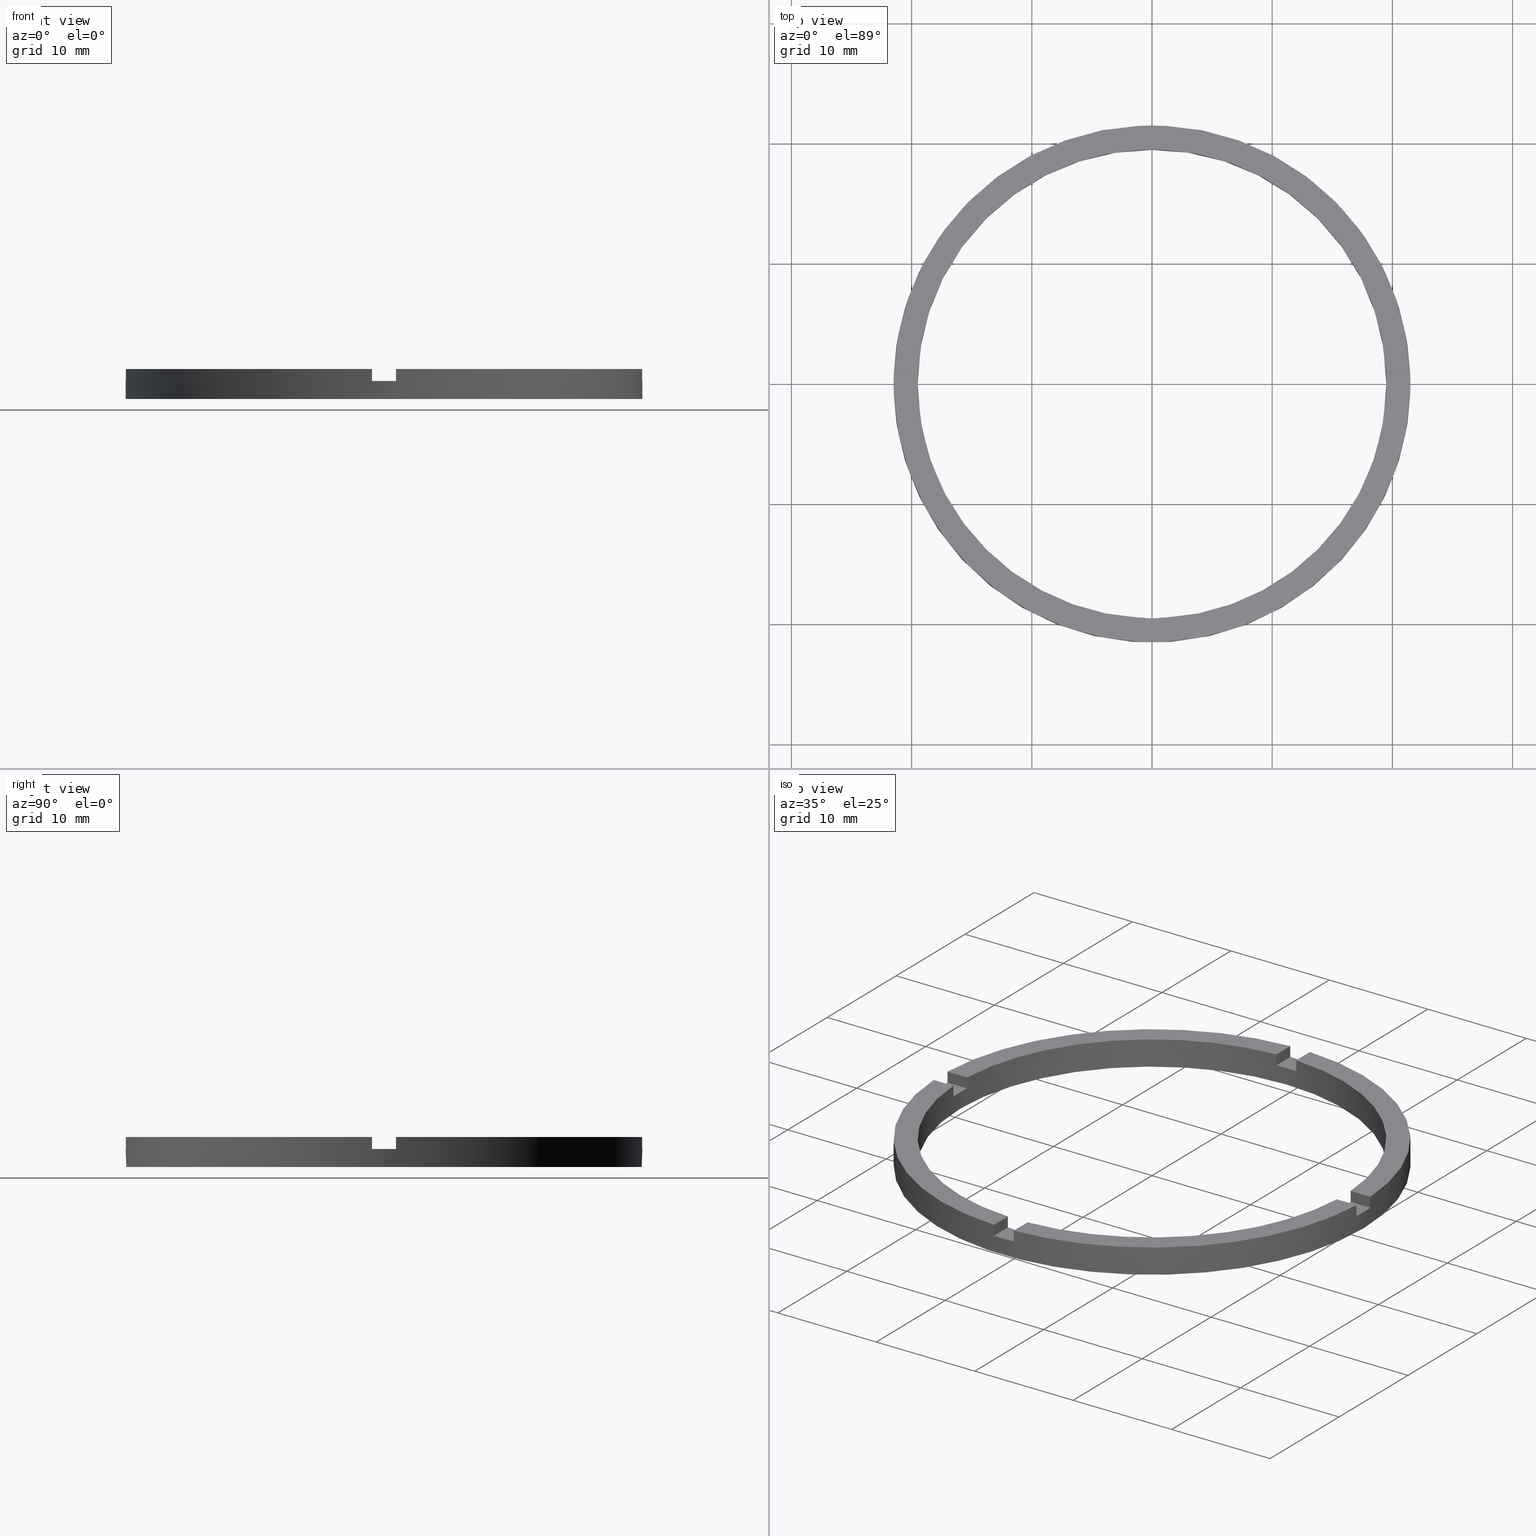
[diagram: canonical four-view strip — front | top / right | iso, engineering-drawing reading convention]
A machine part, canonical four-view strip (front | top / right | iso — engineering-drawing reading convention). The complete STEP part file that produces these views, byte-faithful:
ISO-10303-21;
HEADER;
FILE_DESCRIPTION (( 'STEP AP203' ),
    '1' );
FILE_NAME ('514090.step',
    '2024-12-26T02:36:35',
    ( 'MSI' ),
    ( '' ),
    'SwSTEP 2.0',
    'SolidWorks 2020',
    '' );
FILE_SCHEMA (( 'CONFIG_CONTROL_DESIGN' ));
ENDSEC;

DATA;
#1 =( NAMED_UNIT ( * ) PLANE_ANGLE_UNIT ( ) SI_UNIT ( $, .RADIAN. ) );
#2 = EDGE_CURVE ( 'NONE', #97, #382, #440, .T. ) ;
#3 = CARTESIAN_POINT ( 'NONE',  ( 0.000000000000000000, 0.000000000000000000, 2.500000000000000000 ) ) ;
#4 = CARTESIAN_POINT ( 'NONE',  ( -1.000000000000161426, -21.47673159491451855, 2.500000000000000000 ) ) ;
#5 = CARTESIAN_POINT ( 'NONE',  ( -19.50000000000000000, 0.000000000000000000, 1.500000000000000000 ) ) ;
#6 = APPROVAL_ROLE ( '' ) ;
#7 = LINE ( 'NONE', #99, #261 ) ;
#8 = FACE_OUTER_BOUND ( 'NONE', #625, .T. ) ;
#9 =( LENGTH_UNIT ( ) NAMED_UNIT ( * ) SI_UNIT ( .MILLI., .METRE. ) );
#10 = VECTOR ( 'NONE', #240, 1000.000000000000000 ) ;
#11 = PLANE ( 'NONE',  #716 ) ;
#12 = DIRECTION ( 'NONE',  ( 1.301042606982605321E-16, -1.000000000000000000, 0.000000000000000000 ) ) ;
#13 = DIRECTION ( 'NONE',  ( -0.000000000000000000, -0.000000000000000000, -1.000000000000000000 ) ) ;
#14 = EDGE_CURVE ( 'NONE', #647, #742, #169, .T. ) ;
#15 = CARTESIAN_POINT ( 'NONE',  ( 0.000000000000000000, 0.000000000000000000, 1.500000000000000000 ) ) ;
#16 = DIRECTION ( 'NONE',  ( -0.000000000000000000, 0.000000000000000000, 1.000000000000000000 ) ) ;
#17 = LINE ( 'NONE', #282, #554 ) ;
#18 = PLANE ( 'NONE',  #77 ) ;
#19 = PLANE ( 'NONE',  #193 ) ;
#20 = EDGE_CURVE ( 'NONE', #173, #123, #145, .T. ) ;
#21 = ADVANCED_FACE ( 'NONE', ( #677 ), #19, .F. ) ;
#22 = DIRECTION ( 'NONE',  ( 0.000000000000000000, 0.000000000000000000, 1.000000000000000000 ) ) ;
#23 = CARTESIAN_POINT ( 'NONE',  ( -19.50000000000000000, 0.000000000000000000, 2.500000000000000000 ) ) ;
#24 = AXIS2_PLACEMENT_3D ( 'NONE', #218, #525, #767 ) ;
#25 = DIRECTION ( 'NONE',  ( -0.000000000000000000, -0.000000000000000000, -1.000000000000000000 ) ) ;
#26 = DIRECTION ( 'NONE',  ( 1.000000000000000000, 0.000000000000000000, 0.000000000000000000 ) ) ;
#27 = DIRECTION ( 'NONE',  ( 0.000000000000000000, 0.000000000000000000, 1.000000000000000000 ) ) ;
#28 = CIRCLE ( 'NONE', #783, 21.50000000000000000 ) ;
#29 = DIRECTION ( 'NONE',  ( 1.000000000000000000, 4.336808689942018352E-17, 0.000000000000000000 ) ) ;
#30 = CARTESIAN_POINT ( 'NONE',  ( -19.47434209415044748, 0.9999999999999753530, 2.500000000000000000 ) ) ;
#31 = DIRECTION ( 'NONE',  ( 0.000000000000000000, 0.000000000000000000, 1.000000000000000000 ) ) ;
#32 = APPROVAL_DATE_TIME ( #568, #52 ) ;
#33 = DIRECTION ( 'NONE',  ( 1.000000000000000000, 4.336808689942018352E-17, 0.000000000000000000 ) ) ;
#34 = DIRECTION ( 'NONE',  ( -1.000000000000000000, -4.336808689942018352E-17, -0.000000000000000000 ) ) ;
#35 = DIRECTION ( 'NONE',  ( 1.000000000000000000, 0.000000000000000000, 0.000000000000000000 ) ) ;
#36 = DIRECTION ( 'NONE',  ( 0.000000000000000000, -0.000000000000000000, 1.000000000000000000 ) ) ;
#37 = APPROVAL_PERSON_ORGANIZATION ( #44, #52, #283 ) ;
#38 = CARTESIAN_POINT ( 'NONE',  ( 11.49999999999999289, 0.9999999999998414602, 1.500000000000000000 ) ) ;
#39 = PERSON_AND_ORGANIZATION ( #360, #311 ) ;
#40 = AXIS2_PLACEMENT_3D ( 'NONE', #502, #16, #122 ) ;
#41 = PERSON_AND_ORGANIZATION_ROLE ( 'design_owner' ) ;
#42 = DIRECTION ( 'NONE',  ( 0.000000000000000000, 0.000000000000000000, 1.000000000000000000 ) ) ;
#43 = AXIS2_PLACEMENT_3D ( 'NONE', #737, #266, #215 ) ;
#44 = PERSON_AND_ORGANIZATION ( #360, #311 ) ;
#45 = DIRECTION ( 'NONE',  ( -1.301042606982605321E-16, 1.000000000000000000, -0.000000000000000000 ) ) ;
#46 = LOCAL_TIME ( 10, 36, 35.00000000000000000, #581 ) ;
#47 = AXIS2_PLACEMENT_3D ( 'NONE', #744, #220, #323 ) ;
#48 = DIRECTION ( 'NONE',  ( 0.000000000000000000, 0.000000000000000000, 1.000000000000000000 ) ) ;
#49 = CARTESIAN_POINT ( 'NONE',  ( -1.000000000000025535, 11.49999999999999822, 1.500000000000000000 ) ) ;
#50 = EDGE_CURVE ( 'NONE', #149, #697, #397, .T. ) ;
#51 = CARTESIAN_POINT ( 'NONE',  ( 0.000000000000000000, 0.000000000000000000, 2.500000000000000000 ) ) ;
#52 = APPROVAL ( #223, 'δָ��' ) ;
#53 = ADVANCED_FACE ( 'NONE', ( #399 ), #602, .F. ) ;
#54 = APPROVAL_PERSON_ORGANIZATION ( #315, #570, #6 ) ;
#55 = CARTESIAN_POINT ( 'NONE',  ( -11.50000000000018296, -1.000000000000023315, 1.500000000000000000 ) ) ;
#56 = DIRECTION ( 'NONE',  ( 1.000000000000000000, 0.000000000000000000, 0.000000000000000000 ) ) ;
#57 = EDGE_CURVE ( 'NONE', #357, #367, #692, .T. ) ;
#58 = CARTESIAN_POINT ( 'NONE',  ( -19.50000000000000000, 0.000000000000000000, 0.000000000000000000 ) ) ;
#59 = LOCAL_TIME ( 10, 36, 35.00000000000000000, #594 ) ;
#60 = CARTESIAN_POINT ( 'NONE',  ( 0.000000000000000000, 0.000000000000000000, 1.500000000000000000 ) ) ;
#61 = CARTESIAN_POINT ( 'NONE',  ( 0.000000000000000000, 0.000000000000000000, 0.000000000000000000 ) ) ;
#62 = PRODUCT_RELATED_PRODUCT_CATEGORY ( 'detail', '', ( #606 ) ) ;
#63 = DIRECTION ( 'NONE',  ( 1.000000000000000000, 0.000000000000000000, 0.000000000000000000 ) ) ;
#64 = CARTESIAN_POINT ( 'NONE',  ( 0.9999999999999744649, 21.47673159491452921, 2.500000000000000000 ) ) ;
#65 = CARTESIAN_POINT ( 'NONE',  ( 0.9999999999998373523, -11.50000000000017764, 2.500000000000000000 ) ) ;
#66 = AXIS2_PLACEMENT_3D ( 'NONE', #527, #354, #298 ) ;
#67 = CARTESIAN_POINT ( 'NONE',  ( 0.9999999999999744649, 19.47434209415044748, 1.500000000000000000 ) ) ;
#68 = CARTESIAN_POINT ( 'NONE',  ( 19.47434209415044037, -1.000000000000158096, 1.500000000000000000 ) ) ;
#69 = EDGE_CURVE ( 'NONE', #382, #695, #430, .T. ) ;
#70 = DIRECTION ( 'NONE',  ( 0.000000000000000000, 0.000000000000000000, 1.000000000000000000 ) ) ;
#71 = DIRECTION ( 'NONE',  ( 1.000000000000000000, 0.000000000000000000, 0.000000000000000000 ) ) ;
#72 = ORIENTED_EDGE ( 'NONE', *, *, #400, .F. ) ;
#73 = CARTESIAN_POINT ( 'NONE',  ( -21.47673159491452566, -1.000000000000024869, 2.500000000000000000 ) ) ;
#74 = EDGE_LOOP ( 'NONE', ( #730, #458, #356, #84, #728, #628, #194, #643, #461, #381, #118, #403 ) ) ;
#75 = EDGE_CURVE ( 'NONE', #83, #695, #162, .T. ) ;
#76 = ORIENTED_EDGE ( 'NONE', *, *, #366, .T. ) ;
#77 = AXIS2_PLACEMENT_3D ( 'NONE', #559, #452, #368 ) ;
#78 = ORIENTED_EDGE ( 'NONE', *, *, #689, .F. ) ;
#79 = CLOSED_SHELL ( 'NONE', ( #618, #114, #362, #681, #557, #201, #372, #562, #260, #21, #460, #447, #505, #259, #748, #131, #300, #752, #517, #53, #759 ) ) ;
#80 = EDGE_LOOP ( 'NONE', ( #102, #614, #103, #659 ) ) ;
#81 = CC_DESIGN_DATE_AND_TIME_ASSIGNMENT ( #313, #119, ( #279 ) ) ;
#82 = CARTESIAN_POINT ( 'NONE',  ( -21.50000000000000000, 0.000000000000000000, 2.500000000000000000 ) ) ;
#83 = VERTEX_POINT ( 'NONE', #462 ) ;
#84 = ORIENTED_EDGE ( 'NONE', *, *, #603, .F. ) ;
#85 = CARTESIAN_POINT ( 'NONE',  ( -21.47673159491452566, -1.000000000000024869, 1.500000000000000000 ) ) ;
#86 = VERTEX_POINT ( 'NONE', #446 ) ;
#87 = EDGE_CURVE ( 'NONE', #450, #108, #163, .T. ) ;
#88 = DIRECTION ( 'NONE',  ( 0.000000000000000000, 1.000000000000000000, 0.000000000000000000 ) ) ;
#89 = VERTEX_POINT ( 'NONE', #272 ) ;
#90 = DIRECTION ( 'NONE',  ( -0.000000000000000000, -0.000000000000000000, -1.000000000000000000 ) ) ;
#91 = ORIENTED_EDGE ( 'NONE', *, *, #217, .T. ) ;
#92 = ORIENTED_EDGE ( 'NONE', *, *, #470, .F. ) ;
#93 = EDGE_CURVE ( 'NONE', #634, #608, #167, .T. ) ;
#94 = ORIENTED_EDGE ( 'NONE', *, *, #476, .T. ) ;
#95 = ORIENTED_EDGE ( 'NONE', *, *, #304, .T. ) ;
#96 = CARTESIAN_POINT ( 'NONE',  ( -1.000000000000162759, -11.50000000000017764, 2.500000000000000000 ) ) ;
#97 = VERTEX_POINT ( 'NONE', #73 ) ;
#98 = ORIENTED_EDGE ( 'NONE', *, *, #459, .T. ) ;
#99 = CARTESIAN_POINT ( 'NONE',  ( -19.47434209415044748, -1.000000000000024647, 2.500000000000000000 ) ) ;
#100 = ORIENTED_EDGE ( 'NONE', *, *, #87, .T. ) ;
#101 = VERTEX_POINT ( 'NONE', #468 ) ;
#102 = ORIENTED_EDGE ( 'NONE', *, *, #175, .F. ) ;
#103 = ORIENTED_EDGE ( 'NONE', *, *, #2, .F. ) ;
#104 = CARTESIAN_POINT ( 'NONE',  ( -21.47673159491452566, -1.000000000000024869, 2.500000000000000000 ) ) ;
#105 = VERTEX_POINT ( 'NONE', #155 ) ;
#106 = EDGE_CURVE ( 'NONE', #694, #691, #685, .T. ) ;
#107 = ORIENTED_EDGE ( 'NONE', *, *, #611, .F. ) ;
#108 = VERTEX_POINT ( 'NONE', #268 ) ;
#109 = VERTEX_POINT ( 'NONE', #526 ) ;
#110 = ORIENTED_EDGE ( 'NONE', *, *, #144, .F. ) ;
#111 = EDGE_LOOP ( 'NONE', ( #457, #721, #142, #389 ) ) ;
#112 = VERTEX_POINT ( 'NONE', #412 ) ;
#113 = VERTEX_POINT ( 'NONE', #743 ) ;
#114 = ADVANCED_FACE ( 'NONE', ( #670 ), #674, .T. ) ;
#115 = DIRECTION ( 'NONE',  ( -0.000000000000000000, -0.000000000000000000, -1.000000000000000000 ) ) ;
#116 = ORIENTED_EDGE ( 'NONE', *, *, #349, .T. ) ;
#117 = AXIS2_PLACEMENT_3D ( 'NONE', #202, #246, #56 ) ;
#118 = ORIENTED_EDGE ( 'NONE', *, *, #217, .F. ) ;
#119 = DATE_TIME_ROLE ( 'classification_date' ) ;
#120 = ORIENTED_EDGE ( 'NONE', *, *, #93, .F. ) ;
#121 = AXIS2_PLACEMENT_3D ( 'NONE', #130, #442, #495 ) ;
#122 = DIRECTION ( 'NONE',  ( 1.000000000000000000, 0.000000000000000000, 0.000000000000000000 ) ) ;
#123 = VERTEX_POINT ( 'NONE', #172 ) ;
#124 = PLANE ( 'NONE',  #567 ) ;
#125 = ORIENTED_EDGE ( 'NONE', *, *, #459, .F. ) ;
#126 = AXIS2_PLACEMENT_3D ( 'NONE', #51, #196, #523 ) ;
#127 = DIRECTION ( 'NONE',  ( 1.000000000000000000, 0.000000000000000000, 0.000000000000000000 ) ) ;
#128 = ORIENTED_EDGE ( 'NONE', *, *, #327, .F. ) ;
#129 = ORIENTED_EDGE ( 'NONE', *, *, #75, .T. ) ;
#130 = CARTESIAN_POINT ( 'NONE',  ( 0.000000000000000000, 0.000000000000000000, 0.000000000000000000 ) ) ;
#131 = ADVANCED_FACE ( 'NONE', ( #136 ), #482, .F. ) ;
#132 = VECTOR ( 'NONE', #706, 1000.000000000000000 ) ;
#133 = CC_DESIGN_PERSON_AND_ORGANIZATION_ASSIGNMENT ( #572, #226, ( #501 ) ) ;
#134 = ORIENTED_EDGE ( 'NONE', *, *, #2, .T. ) ;
#135 = ORIENTED_EDGE ( 'NONE', *, *, #20, .T. ) ;
#136 = FACE_OUTER_BOUND ( 'NONE', #661, .T. ) ;
#137 = DIRECTION ( 'NONE',  ( 0.000000000000000000, 0.000000000000000000, 1.000000000000000000 ) ) ;
#138 = EDGE_LOOP ( 'NONE', ( #656, #152, #395, #704 ) ) ;
#139 = EDGE_CURVE ( 'NONE', #205, #113, #408, .T. ) ;
#140 = VECTOR ( 'NONE', #42, 1000.000000000000000 ) ;
#141 = CARTESIAN_POINT ( 'NONE',  ( 0.9999999999999744649, 11.49999999999999822, 1.500000000000000000 ) ) ;
#142 = ORIENTED_EDGE ( 'NONE', *, *, #565, .F. ) ;
#143 = ORIENTED_EDGE ( 'NONE', *, *, #57, .T. ) ;
#144 = EDGE_CURVE ( 'NONE', #443, #668, #415, .T. ) ;
#145 = LINE ( 'NONE', #55, #420 ) ;
#146 = VECTOR ( 'NONE', #182, 1000.000000000000000 ) ;
#147 = DIRECTION ( 'NONE',  ( 0.000000000000000000, 1.000000000000000000, 0.000000000000000000 ) ) ;
#148 = ORIENTED_EDGE ( 'NONE', *, *, #366, .F. ) ;
#149 = VERTEX_POINT ( 'NONE', #401 ) ;
#150 = ORIENTED_EDGE ( 'NONE', *, *, #139, .T. ) ;
#151 = DIRECTION ( 'NONE',  ( 0.000000000000000000, -0.000000000000000000, 1.000000000000000000 ) ) ;
#152 = ORIENTED_EDGE ( 'NONE', *, *, #635, .T. ) ;
#153 = ORIENTED_EDGE ( 'NONE', *, *, #57, .F. ) ;
#154 = ORIENTED_EDGE ( 'NONE', *, *, #183, .T. ) ;
#155 = CARTESIAN_POINT ( 'NONE',  ( 21.47673159491453632, 0.9999999999998419042, 2.500000000000000000 ) ) ;
#156 = CARTESIAN_POINT ( 'NONE',  ( 19.47434209415045459, 0.9999999999998419042, 2.500000000000000000 ) ) ;
#157 = CARTESIAN_POINT ( 'NONE',  ( 0.000000000000000000, 0.000000000000000000, 0.000000000000000000 ) ) ;
#158 = ORIENTED_EDGE ( 'NONE', *, *, #186, .T. ) ;
#159 = ORIENTED_EDGE ( 'NONE', *, *, #497, .T. ) ;
#160 = EDGE_CURVE ( 'NONE', #89, #173, #410, .T. ) ;
#161 = VERTEX_POINT ( 'NONE', #545 ) ;
#162 = LINE ( 'NONE', #699, #701 ) ;
#163 = CIRCLE ( 'NONE', #212, 19.50000000000000000 ) ;
#164 = VERTEX_POINT ( 'NONE', #236 ) ;
#165 = VERTEX_POINT ( 'NONE', #493 ) ;
#166 = ORIENTED_EDGE ( 'NONE', *, *, #93, .T. ) ;
#167 = LINE ( 'NONE', #637, #441 ) ;
#168 = EDGE_LOOP ( 'NONE', ( #612, #143, #631, #605 ) ) ;
#169 = CIRCLE ( 'NONE', #598, 19.50000000000000000 ) ;
#170 = AXIS2_PLACEMENT_3D ( 'NONE', #60, #757, #624 ) ;
#171 = ORIENTED_EDGE ( 'NONE', *, *, #349, .F. ) ;
#172 = CARTESIAN_POINT ( 'NONE',  ( -19.47434209415044748, -1.000000000000024647, 1.500000000000000000 ) ) ;
#173 = VERTEX_POINT ( 'NONE', #85 ) ;
#174 = CIRCLE ( 'NONE', #40, 19.50000000000000000 ) ;
#175 = EDGE_CURVE ( 'NONE', #695, #644, #682, .T. ) ;
#176 = CIRCLE ( 'NONE', #285, 21.50000000000000000 ) ;
#177 = APPLICATION_PROTOCOL_DEFINITION ( 'international standard', 'config_control_design', 1994, #652 ) ;
#178 = CIRCLE ( 'NONE', #746, 21.50000000000000000 ) ;
#179 = CC_DESIGN_APPROVAL ( #52, ( #733 ) ) ;
#180 = CARTESIAN_POINT ( 'NONE',  ( 0.000000000000000000, 0.000000000000000000, 2.500000000000000000 ) ) ;
#181 = VECTOR ( 'NONE', #294, 1000.000000000000000 ) ;
#182 = DIRECTION ( 'NONE',  ( 1.301042606982605321E-16, -1.000000000000000000, 0.000000000000000000 ) ) ;
#183 = EDGE_CURVE ( 'NONE', #165, #149, #411, .T. ) ;
#184 = CARTESIAN_POINT ( 'NONE',  ( 0.000000000000000000, 0.000000000000000000, 1.500000000000000000 ) ) ;
#185 = DIRECTION ( 'NONE',  ( 0.000000000000000000, 0.000000000000000000, 1.000000000000000000 ) ) ;
#186 = EDGE_CURVE ( 'NONE', #675, #634, #454, .T. ) ;
#187 = CARTESIAN_POINT ( 'NONE',  ( 0.000000000000000000, 0.000000000000000000, 1.500000000000000000 ) ) ;
#188 = ORIENTED_EDGE ( 'NONE', *, *, #304, .F. ) ;
#189 = COORDINATED_UNIVERSAL_TIME_OFFSET ( 8, 0, .AHEAD. ) ;
#190 = DIRECTION ( 'NONE',  ( -0.000000000000000000, -0.000000000000000000, -1.000000000000000000 ) ) ;
#191 = DIRECTION ( 'NONE',  ( -0.000000000000000000, -0.000000000000000000, -1.000000000000000000 ) ) ;
#192 = DIRECTION ( 'NONE',  ( 0.000000000000000000, -0.000000000000000000, 1.000000000000000000 ) ) ;
#193 = AXIS2_PLACEMENT_3D ( 'NONE', #499, #613, #352 ) ;
#194 = ORIENTED_EDGE ( 'NONE', *, *, #738, .F. ) ;
#195 = VERTEX_POINT ( 'NONE', #596 ) ;
#196 = DIRECTION ( 'NONE',  ( 0.000000000000000000, 0.000000000000000000, 1.000000000000000000 ) ) ;
#197 = EDGE_CURVE ( 'NONE', #665, #205, #176, .T. ) ;
#198 = CARTESIAN_POINT ( 'NONE',  ( 11.49999999999999289, -1.000000000000158540, 1.500000000000000000 ) ) ;
#199 = PLANE ( 'NONE',  #779 ) ;
#200 = DIRECTION ( 'NONE',  ( 1.000000000000000000, 0.000000000000000000, 0.000000000000000000 ) ) ;
#201 = ADVANCED_FACE ( 'NONE', ( #713 ), #247, .T. ) ;
#202 = CARTESIAN_POINT ( 'NONE',  ( 0.000000000000000000, 0.000000000000000000, 2.500000000000000000 ) ) ;
#203 = AXIS2_PLACEMENT_3D ( 'NONE', #550, #638, #722 ) ;
#204 = DIRECTION ( 'NONE',  ( 1.000000000000000000, -0.000000000000000000, 0.000000000000000000 ) ) ;
#205 = VERTEX_POINT ( 'NONE', #303 ) ;
#206 = CARTESIAN_POINT ( 'NONE',  ( 0.000000000000000000, 0.000000000000000000, 1.500000000000000000 ) ) ;
#207 = VECTOR ( 'NONE', #90, 1000.000000000000000 ) ;
#208 = AXIS2_PLACEMENT_3D ( 'NONE', #409, #326, #270 ) ;
#209 = CYLINDRICAL_SURFACE ( 'NONE', #673, 21.50000000000000000 ) ;
#210 = DIRECTION ( 'NONE',  ( -1.000000000000000000, 0.000000000000000000, 0.000000000000000000 ) ) ;
#211 = VECTOR ( 'NONE', #34, 1000.000000000000000 ) ;
#212 = AXIS2_PLACEMENT_3D ( 'NONE', #61, #309, #383 ) ;
#213 = FACE_OUTER_BOUND ( 'NONE', #465, .T. ) ;
#214 = CYLINDRICAL_SURFACE ( 'NONE', #494, 19.50000000000000000 ) ;
#215 = DIRECTION ( 'NONE',  ( 1.000000000000000000, 0.000000000000000000, -0.000000000000000000 ) ) ;
#216 = VECTOR ( 'NONE', #185, 1000.000000000000000 ) ;
#217 = EDGE_CURVE ( 'NONE', #105, #86, #178, .T. ) ;
#218 = CARTESIAN_POINT ( 'NONE',  ( 0.000000000000000000, 0.000000000000000000, 1.500000000000000000 ) ) ;
#219 = LINE ( 'NONE', #663, #755 ) ;
#220 = DIRECTION ( 'NONE',  ( 0.000000000000000000, 0.000000000000000000, 1.000000000000000000 ) ) ;
#221 = DIRECTION ( 'NONE',  ( -1.000000000000000000, 0.000000000000000000, 0.000000000000000000 ) ) ;
#222 = CARTESIAN_POINT ( 'NONE',  ( 11.49999999999999289, -1.000000000000158540, 1.500000000000000000 ) ) ;
#223 = APPROVAL_STATUS ( 'not_yet_approved' ) ;
#224 = VECTOR ( 'NONE', #478, 1000.000000000000000 ) ;
#225 = CIRCLE ( 'NONE', #117, 19.50000000000000000 ) ;
#226 = PERSON_AND_ORGANIZATION_ROLE ( 'creator' ) ;
#227 = VECTOR ( 'NONE', #553, 1000.000000000000000 ) ;
#228 = AXIS2_PLACEMENT_3D ( 'NONE', #15, #27, #71 ) ;
#229 = CIRCLE ( 'NONE', #238, 21.50000000000000000 ) ;
#230 = CARTESIAN_POINT ( 'NONE',  ( -1.000000000000025535, 11.49999999999999822, 2.500000000000000000 ) ) ;
#231 = FACE_BOUND ( 'NONE', #607, .T. ) ;
#232 = DIRECTION ( 'NONE',  ( -1.000000000000000000, 0.000000000000000000, 0.000000000000000000 ) ) ;
#233 = VECTOR ( 'NONE', #45, 1000.000000000000000 ) ;
#234 = AXIS2_PLACEMENT_3D ( 'NONE', #295, #48, #592 ) ;
#235 = CIRCLE ( 'NONE', #66, 19.50000000000000000 ) ;
#236 = CARTESIAN_POINT ( 'NONE',  ( 0.9999999999998384625, -19.47434209415045814, 1.500000000000000000 ) ) ;
#237 = AXIS2_PLACEMENT_3D ( 'NONE', #38, #537, #586 ) ;
#238 = AXIS2_PLACEMENT_3D ( 'NONE', #771, #31, #578 ) ;
#239 = FACE_OUTER_BOUND ( 'NONE', #718, .T. ) ;
#240 = DIRECTION ( 'NONE',  ( 0.000000000000000000, 0.000000000000000000, 1.000000000000000000 ) ) ;
#241 = DIRECTION ( 'NONE',  ( -0.000000000000000000, -0.000000000000000000, -1.000000000000000000 ) ) ;
#242 = DIRECTION ( 'NONE',  ( 1.000000000000000000, 0.000000000000000000, 0.000000000000000000 ) ) ;
#243 = CC_DESIGN_DATE_AND_TIME_ASSIGNMENT ( #290, #438, ( #501 ) ) ;
#244 = FACE_OUTER_BOUND ( 'NONE', #688, .T. ) ;
#245 = LINE ( 'NONE', #104, #520 ) ;
#246 = DIRECTION ( 'NONE',  ( 0.000000000000000000, 0.000000000000000000, 1.000000000000000000 ) ) ;
#247 = PLANE ( 'NONE',  #760 ) ;
#248 = VECTOR ( 'NONE', #504, 1000.000000000000000 ) ;
#249 = EDGE_CURVE ( 'NONE', #83, #164, #174, .T. ) ;
#250 = DIRECTION ( 'NONE',  ( -1.000000000000000000, -1.734723475976807341E-16, 0.000000000000000000 ) ) ;
#251 = VECTOR ( 'NONE', #588, 1000.000000000000000 ) ;
#252 = DIRECTION ( 'NONE',  ( 1.000000000000000000, 0.000000000000000000, 0.000000000000000000 ) ) ;
#253 = PLANE ( 'NONE',  #432 ) ;
#254 = DIRECTION ( 'NONE',  ( 1.000000000000000000, 0.000000000000000000, -0.000000000000000000 ) ) ;
#255 = CARTESIAN_POINT ( 'NONE',  ( -1.000000000000161426, -21.47673159491451855, 1.500000000000000000 ) ) ;
#256 = LINE ( 'NONE', #345, #10 ) ;
#257 = DIRECTION ( 'NONE',  ( 0.000000000000000000, 0.000000000000000000, 1.000000000000000000 ) ) ;
#258 = CIRCLE ( 'NONE', #47, 19.50000000000000000 ) ;
#259 = ADVANCED_FACE ( 'NONE', ( #715 ), #199, .F. ) ;
#260 = ADVANCED_FACE ( 'NONE', ( #717 ), #710, .F. ) ;
#261 = VECTOR ( 'NONE', #417, 1000.000000000000000 ) ;
#262 = CIRCLE ( 'NONE', #208, 21.50000000000000000 ) ;
#263 = CARTESIAN_POINT ( 'NONE',  ( 0.9999999999999744649, 19.47434209415044748, 2.500000000000000000 ) ) ;
#264 = CARTESIAN_POINT ( 'NONE',  ( 0.000000000000000000, 0.000000000000000000, 2.500000000000000000 ) ) ;
#265 = AXIS2_PLACEMENT_3D ( 'NONE', #719, #151, #633 ) ;
#266 = DIRECTION ( 'NONE',  ( 0.000000000000000000, 0.000000000000000000, 1.000000000000000000 ) ) ;
#267 = VECTOR ( 'NONE', #33, 1000.000000000000000 ) ;
#268 = CARTESIAN_POINT ( 'NONE',  ( 19.50000000000000000, 2.388061258337338939E-15, 0.000000000000000000 ) ) ;
#269 = CARTESIAN_POINT ( 'NONE',  ( 21.50000000000000000, 2.632990618166809235E-15, 1.500000000000000000 ) ) ;
#270 = DIRECTION ( 'NONE',  ( 1.000000000000000000, 0.000000000000000000, 0.000000000000000000 ) ) ;
#271 = EDGE_CURVE ( 'NONE', #665, #86, #448, .T. ) ;
#272 = CARTESIAN_POINT ( 'NONE',  ( -21.50000000000000000, 0.000000000000000000, 1.500000000000000000 ) ) ;
#273 = AXIS2_PLACEMENT_3D ( 'NONE', #264, #318, #359 ) ;
#274 = FACE_OUTER_BOUND ( 'NONE', #662, .T. ) ;
#275 = CARTESIAN_POINT ( 'NONE',  ( 21.47673159491453632, 0.9999999999998419042, 1.500000000000000000 ) ) ;
#276 = CARTESIAN_POINT ( 'NONE',  ( 0.000000000000000000, 0.000000000000000000, 2.500000000000000000 ) ) ;
#277 = FACE_OUTER_BOUND ( 'NONE', #650, .T. ) ;
#278 = LINE ( 'NONE', #222, #267 ) ;
#279 = SECURITY_CLASSIFICATION ( '', '', #548 ) ;
#280 = CARTESIAN_POINT ( 'NONE',  ( 0.000000000000000000, 0.000000000000000000, 0.000000000000000000 ) ) ;
#281 = LINE ( 'NONE', #739, #552 ) ;
#282 = CARTESIAN_POINT ( 'NONE',  ( -1.000000000000161426, -21.47673159491451855, 2.500000000000000000 ) ) ;
#283 = APPROVAL_ROLE ( '' ) ;
#284 = PLANE ( 'NONE',  #532 ) ;
#285 = AXIS2_PLACEMENT_3D ( 'NONE', #669, #192, #242 ) ;
#286 = FACE_OUTER_BOUND ( 'NONE', #712, .T. ) ;
#287 = VECTOR ( 'NONE', #474, 1000.000000000000000 ) ;
#288 = CARTESIAN_POINT ( 'NONE',  ( 0.000000000000000000, 0.000000000000000000, 1.500000000000000000 ) ) ;
#289 = CARTESIAN_POINT ( 'NONE',  ( 19.47434209415044037, -1.000000000000158096, 2.500000000000000000 ) ) ;
#290 = DATE_AND_TIME ( #574, #584 ) ;
#291 = PERSON_AND_ORGANIZATION ( #360, #311 ) ;
#292 = DIRECTION ( 'NONE',  ( -1.000000000000000000, 0.000000000000000000, 0.000000000000000000 ) ) ;
#293 = CARTESIAN_POINT ( 'NONE',  ( 0.9999999999999744649, 19.47434209415044748, 2.500000000000000000 ) ) ;
#294 = DIRECTION ( 'NONE',  ( -0.000000000000000000, -1.000000000000000000, -0.000000000000000000 ) ) ;
#295 = CARTESIAN_POINT ( 'NONE',  ( 0.000000000000000000, 0.000000000000000000, 1.500000000000000000 ) ) ;
#296 = DIRECTION ( 'NONE',  ( 1.000000000000000000, 1.734723475976807341E-16, -0.000000000000000000 ) ) ;
#297 = DATE_AND_TIME ( #306, #587 ) ;
#298 = DIRECTION ( 'NONE',  ( 1.000000000000000000, 0.000000000000000000, 0.000000000000000000 ) ) ;
#299 = CARTESIAN_POINT ( 'NONE',  ( 0.000000000000000000, 0.000000000000000000, 2.500000000000000000 ) ) ;
#300 = ADVANCED_FACE ( 'NONE', ( #515 ), #253, .F. ) ;
#301 = EDGE_CURVE ( 'NONE', #367, #86, #777, .T. ) ;
#302 = APPROVAL_DATE_TIME ( #297, #529 ) ;
#303 = CARTESIAN_POINT ( 'NONE',  ( -1.000000000000025535, 21.47673159491452566, 1.500000000000000000 ) ) ;
#304 = EDGE_CURVE ( 'NONE', #101, #367, #225, .T. ) ;
#305 = CARTESIAN_POINT ( 'NONE',  ( 0.000000000000000000, 0.000000000000000000, 2.500000000000000000 ) ) ;
#306 = CALENDAR_DATE ( 2024, 26, 12 ) ;
#307 = CARTESIAN_POINT ( 'NONE',  ( 0.000000000000000000, 0.000000000000000000, 1.500000000000000000 ) ) ;
#308 = APPROVAL_PERSON_ORGANIZATION ( #39, #529, #740 ) ;
#309 = DIRECTION ( 'NONE',  ( 0.000000000000000000, 0.000000000000000000, 1.000000000000000000 ) ) ;
#310 = CALENDAR_DATE ( 2024, 26, 12 ) ;
#311 = ORGANIZATION ( 'δָ��', 'δָ��', '' ) ;
#312 = PERSON_AND_ORGANIZATION ( #360, #311 ) ;
#313 = DATE_AND_TIME ( #322, #59 ) ;
#314 = DIRECTION ( 'NONE',  ( 0.000000000000000000, 0.000000000000000000, -1.000000000000000000 ) ) ;
#315 = PERSON_AND_ORGANIZATION ( #360, #311 ) ;
#316 = CARTESIAN_POINT ( 'NONE',  ( 0.9999999999998386846, -21.47673159491453632, 2.500000000000000000 ) ) ;
#317 = DIRECTION ( 'NONE',  ( 0.000000000000000000, 0.000000000000000000, 1.000000000000000000 ) ) ;
#318 = DIRECTION ( 'NONE',  ( 0.000000000000000000, 0.000000000000000000, 1.000000000000000000 ) ) ;
#319 = PERSON_AND_ORGANIZATION ( #360, #311 ) ;
#320 = PLANE ( 'NONE',  #727 ) ;
#321 = CARTESIAN_POINT ( 'NONE',  ( 11.49999999999999289, 0.9999999999998414602, 1.500000000000000000 ) ) ;
#322 = CALENDAR_DATE ( 2024, 26, 12 ) ;
#323 = DIRECTION ( 'NONE',  ( 1.000000000000000000, 0.000000000000000000, 0.000000000000000000 ) ) ;
#324 = DIRECTION ( 'NONE',  ( -1.301042606982605321E-16, 1.000000000000000000, -0.000000000000000000 ) ) ;
#325 = PERSON_AND_ORGANIZATION_ROLE ( 'classification_officer' ) ;
#326 = DIRECTION ( 'NONE',  ( 0.000000000000000000, 0.000000000000000000, 1.000000000000000000 ) ) ;
#327 = EDGE_CURVE ( 'NONE', #108, #450, #235, .T. ) ;
#328 = AXIS2_PLACEMENT_3D ( 'NONE', #157, #645, #26 ) ;
#329 = CARTESIAN_POINT ( 'NONE',  ( 0.9999999999999744649, 21.47673159491452921, 1.500000000000000000 ) ) ;
#330 = EDGE_CURVE ( 'NONE', #105, #694, #509, .T. ) ;
#331 = ORIENTED_EDGE ( 'NONE', *, *, #480, .F. ) ;
#332 = CARTESIAN_POINT ( 'NONE',  ( -21.47673159491452921, 0.9999999999999751310, 2.500000000000000000 ) ) ;
#333 = ORIENTED_EDGE ( 'NONE', *, *, #534, .F. ) ;
#334 = CARTESIAN_POINT ( 'NONE',  ( 0.000000000000000000, 0.000000000000000000, 1.500000000000000000 ) ) ;
#335 = ORIENTED_EDGE ( 'NONE', *, *, #577, .F. ) ;
#336 = EDGE_CURVE ( 'NONE', #112, #109, #496, .T. ) ;
#337 = DIRECTION ( 'NONE',  ( 1.000000000000000000, 0.000000000000000000, 0.000000000000000000 ) ) ;
#338 = ORIENTED_EDGE ( 'NONE', *, *, #400, .T. ) ;
#339 = ORIENTED_EDGE ( 'NONE', *, *, #540, .F. ) ;
#340 = ORIENTED_EDGE ( 'NONE', *, *, #379, .T. ) ;
#341 = CARTESIAN_POINT ( 'NONE',  ( 19.50000000000000000, 2.388061258337338939E-15, 1.500000000000000000 ) ) ;
#342 = ORIENTED_EDGE ( 'NONE', *, *, #470, .T. ) ;
#343 = MECHANICAL_CONTEXT ( 'NONE', #555, 'mechanical' ) ;
#344 = ORIENTED_EDGE ( 'NONE', *, *, #301, .F. ) ;
#345 = CARTESIAN_POINT ( 'NONE',  ( -19.47434209415044748, 0.9999999999999753530, 2.500000000000000000 ) ) ;
#346 = ORIENTED_EDGE ( 'NONE', *, *, #603, .T. ) ;
#347 = DIRECTION ( 'NONE',  ( 1.000000000000000000, 4.336808689942018352E-17, 0.000000000000000000 ) ) ;
#348 = ORIENTED_EDGE ( 'NONE', *, *, #445, .T. ) ;
#349 = EDGE_CURVE ( 'NONE', #622, #108, #514, .T. ) ;
#350 = ORIENTED_EDGE ( 'NONE', *, *, #528, .T. ) ;
#351 = ORIENTED_EDGE ( 'NONE', *, *, #160, .T. ) ;
#352 = DIRECTION ( 'NONE',  ( 1.000000000000000000, 1.734723475976807341E-16, 0.000000000000000000 ) ) ;
#353 = EDGE_LOOP ( 'NONE', ( #171, #649, #148, #95, #153, #679, #655, #641, #671, #646, #348, #128 ) ) ;
#354 = DIRECTION ( 'NONE',  ( 0.000000000000000000, 0.000000000000000000, 1.000000000000000000 ) ) ;
#355 = DIRECTION ( 'NONE',  ( 0.000000000000000000, 0.000000000000000000, 1.000000000000000000 ) ) ;
#356 = ORIENTED_EDGE ( 'NONE', *, *, #560, .T. ) ;
#357 = VERTEX_POINT ( 'NONE', #67 ) ;
#358 = ORIENTED_EDGE ( 'NONE', *, *, #390, .T. ) ;
#359 = DIRECTION ( 'NONE',  ( 1.000000000000000000, 0.000000000000000000, 0.000000000000000000 ) ) ;
#360 = PERSON ( 'δָ��', 'δָ��', 'δָ��', ('δָ��'), ('δָ��'), ('δָ��') ) ;
#361 = VERTEX_POINT ( 'NONE', #269 ) ;
#362 = ADVANCED_FACE ( 'NONE', ( #778 ), #620, .T. ) ;
#363 = EDGE_LOOP ( 'NONE', ( #387, #351, #135, #416, #617, #338 ) ) ;
#364 = DIRECTION ( 'NONE',  ( 0.000000000000000000, 0.000000000000000000, 1.000000000000000000 ) ) ;
#365 = EDGE_LOOP ( 'NONE', ( #698, #158, #166, #374 ) ) ;
#366 = EDGE_CURVE ( 'NONE', #101, #691, #776, .T. ) ;
#367 = VERTEX_POINT ( 'NONE', #293 ) ;
#368 = DIRECTION ( 'NONE',  ( 1.000000000000000000, 0.000000000000000000, -0.000000000000000000 ) ) ;
#369 = AXIS2_PLACEMENT_3D ( 'NONE', #288, #36, #542 ) ;
#370 = ORIENTED_EDGE ( 'NONE', *, *, #69, .T. ) ;
#371 = ORIENTED_EDGE ( 'NONE', *, *, #445, .F. ) ;
#372 = ADVANCED_FACE ( 'NONE', ( #239, #231 ), #676, .F. ) ;
#373 = ORIENTED_EDGE ( 'NONE', *, *, #386, .F. ) ;
#374 = ORIENTED_EDGE ( 'NONE', *, *, #573, .F. ) ;
#375 = ORIENTED_EDGE ( 'NONE', *, *, #186, .F. ) ;
#376 = CARTESIAN_POINT ( 'NONE',  ( 0.000000000000000000, 0.000000000000000000, 2.500000000000000000 ) ) ;
#377 = EDGE_LOOP ( 'NONE', ( #667, #350, #392, #426 ) ) ;
#378 = ORIENTED_EDGE ( 'NONE', *, *, #249, .T. ) ;
#379 = EDGE_CURVE ( 'NONE', #149, #113, #762, .T. ) ;
#380 = ORIENTED_EDGE ( 'NONE', *, *, #538, .T. ) ;
#381 = ORIENTED_EDGE ( 'NONE', *, *, #271, .T. ) ;
#382 = VERTEX_POINT ( 'NONE', #582 ) ;
#383 = DIRECTION ( 'NONE',  ( 1.000000000000000000, 0.000000000000000000, 0.000000000000000000 ) ) ;
#384 = ORIENTED_EDGE ( 'NONE', *, *, #106, .F. ) ;
#385 = CARTESIAN_POINT ( 'NONE',  ( 19.50000000000000000, 2.388061258337338939E-15, 2.500000000000000000 ) ) ;
#386 = EDGE_CURVE ( 'NONE', #97, #644, #500, .T. ) ;
#387 = ORIENTED_EDGE ( 'NONE', *, *, #693, .T. ) ;
#388 = CARTESIAN_POINT ( 'NONE',  ( -11.50000000000018296, 0.9999999999999767963, 1.500000000000000000 ) ) ;
#389 = ORIENTED_EDGE ( 'NONE', *, *, #50, .F. ) ;
#390 = EDGE_CURVE ( 'NONE', #664, #361, #508, .T. ) ;
#391 = ORIENTED_EDGE ( 'NONE', *, *, #429, .F. ) ;
#392 = ORIENTED_EDGE ( 'NONE', *, *, #249, .F. ) ;
#393 = DIRECTION ( 'NONE',  ( -1.000000000000000000, 0.000000000000000000, 0.000000000000000000 ) ) ;
#394 = CARTESIAN_POINT ( 'NONE',  ( 0.9999999999998373523, -11.50000000000017764, 1.500000000000000000 ) ) ;
#395 = ORIENTED_EDGE ( 'NONE', *, *, #528, .F. ) ;
#396 = ORIENTED_EDGE ( 'NONE', *, *, #160, .F. ) ;
#397 = CIRCLE ( 'NONE', #593, 19.50000000000000000 ) ;
#398 = DIRECTION ( 'NONE',  ( 1.301042606982605321E-16, -1.000000000000000000, 0.000000000000000000 ) ) ;
#399 = FACE_OUTER_BOUND ( 'NONE', #168, .T. ) ;
#400 = EDGE_CURVE ( 'NONE', #647, #443, #775, .T. ) ;
#401 = CARTESIAN_POINT ( 'NONE',  ( -1.000000000000025535, 19.47434209415044748, 2.500000000000000000 ) ) ;
#402 = MANIFOLD_SOLID_BREP ( '�г�-����1', #79 ) ;
#403 = ORIENTED_EDGE ( 'NONE', *, *, #330, .T. ) ;
#404 = EDGE_LOOP ( 'NONE', ( #107, #428, #700, #653, #623, #391, #636, #373, #615, #396, #346, #419 ) ) ;
#405 = DIRECTION ( 'NONE',  ( 0.000000000000000000, 0.000000000000000000, 1.000000000000000000 ) ) ;
#406 = DIRECTION ( 'NONE',  ( 0.000000000000000000, 0.000000000000000000, 1.000000000000000000 ) ) ;
#407 = ORIENTED_EDGE ( 'NONE', *, *, #705, .F. ) ;
#408 = LINE ( 'NONE', #590, #687 ) ;
#409 = CARTESIAN_POINT ( 'NONE',  ( 0.000000000000000000, 0.000000000000000000, 0.000000000000000000 ) ) ;
#410 = CIRCLE ( 'NONE', #725, 21.50000000000000000 ) ;
#411 = LINE ( 'NONE', #230, #181 ) ;
#412 = CARTESIAN_POINT ( 'NONE',  ( 0.9999999999998386846, -21.47673159491453632, 2.500000000000000000 ) ) ;
#413 = AXIS2_PLACEMENT_3D ( 'NONE', #629, #115, #210 ) ;
#414 = EDGE_LOOP ( 'NONE', ( #335, #129, #640, #690 ) ) ;
#415 = LINE ( 'NONE', #332, #140 ) ;
#416 = ORIENTED_EDGE ( 'NONE', *, *, #626, .F. ) ;
#417 = DIRECTION ( 'NONE',  ( -0.000000000000000000, -0.000000000000000000, -1.000000000000000000 ) ) ;
#418 = VERTEX_POINT ( 'NONE', #255 ) ;
#419 = ORIENTED_EDGE ( 'NONE', *, *, #705, .T. ) ;
#420 = VECTOR ( 'NONE', #296, 1000.000000000000000 ) ;
#421 = AXIS2_PLACEMENT_3D ( 'NONE', #184, #683, #337 ) ;
#422 = ORIENTED_EDGE ( 'NONE', *, *, #139, .F. ) ;
#423 = ORIENTED_EDGE ( 'NONE', *, *, #773, .T. ) ;
#424 = DIRECTION ( 'NONE',  ( 0.000000000000000000, 0.000000000000000000, 1.000000000000000000 ) ) ;
#425 = PLANE ( 'NONE',  #234 ) ;
#426 = ORIENTED_EDGE ( 'NONE', *, *, #577, .T. ) ;
#427 = DIRECTION ( 'NONE',  ( -0.000000000000000000, -0.000000000000000000, -1.000000000000000000 ) ) ;
#428 = ORIENTED_EDGE ( 'NONE', *, *, #390, .F. ) ;
#429 = EDGE_CURVE ( 'NONE', #418, #109, #774, .T. ) ;
#430 = CIRCLE ( 'NONE', #126, 19.50000000000000000 ) ;
#431 = DIRECTION ( 'NONE',  ( -0.000000000000000000, -1.000000000000000000, -0.000000000000000000 ) ) ;
#432 = AXIS2_PLACEMENT_3D ( 'NONE', #198, #765, #347 ) ;
#433 = ORIENTED_EDGE ( 'NONE', *, *, #549, .T. ) ;
#434 = DIRECTION ( 'NONE',  ( -0.000000000000000000, -0.000000000000000000, -1.000000000000000000 ) ) ;
#435 = DIRECTION ( 'NONE',  ( 0.000000000000000000, 0.000000000000000000, 1.000000000000000000 ) ) ;
#436 = ORIENTED_EDGE ( 'NONE', *, *, #330, .F. ) ;
#437 = ORIENTED_EDGE ( 'NONE', *, *, #197, .T. ) ;
#438 = DATE_TIME_ROLE ( 'creation_date' ) ;
#439 = ORIENTED_EDGE ( 'NONE', *, *, #20, .F. ) ;
#440 = LINE ( 'NONE', #569, #132 ) ;
#441 = VECTOR ( 'NONE', #29, 1000.000000000000000 ) ;
#442 = DIRECTION ( 'NONE',  ( 0.000000000000000000, 0.000000000000000000, 1.000000000000000000 ) ) ;
#443 = VERTEX_POINT ( 'NONE', #702 ) ;
#444 = ORIENTED_EDGE ( 'NONE', *, *, #106, .T. ) ;
#445 = EDGE_CURVE ( 'NONE', #742, #450, #503, .T. ) ;
#446 = CARTESIAN_POINT ( 'NONE',  ( 0.9999999999999744649, 21.47673159491452921, 2.500000000000000000 ) ) ;
#447 = ADVANCED_FACE ( 'NONE', ( #764 ), #18, .T. ) ;
#448 = LINE ( 'NONE', #64, #512 ) ;
#449 = DIRECTION ( 'NONE',  ( 1.000000000000000000, 0.000000000000000000, 0.000000000000000000 ) ) ;
#450 = VERTEX_POINT ( 'NONE', #58 ) ;
#451 = VECTOR ( 'NONE', #551, 1000.000000000000000 ) ;
#452 = DIRECTION ( 'NONE',  ( 0.000000000000000000, 0.000000000000000000, 1.000000000000000000 ) ) ;
#453 = EDGE_LOOP ( 'NONE', ( #154, #340, #422, #672 ) ) ;
#454 = LINE ( 'NONE', #289, #451 ) ;
#455 = CARTESIAN_POINT ( 'NONE',  ( 21.47673159491453632, 0.9999999999998419042, 2.500000000000000000 ) ) ;
#456 = ORIENTED_EDGE ( 'NONE', *, *, #327, .T. ) ;
#457 = ORIENTED_EDGE ( 'NONE', *, *, #183, .F. ) ;
#458 = ORIENTED_EDGE ( 'NONE', *, *, #611, .T. ) ;
#459 = EDGE_CURVE ( 'NONE', #161, #634, #511, .T. ) ;
#460 = ADVANCED_FACE ( 'NONE', ( #244 ), #124, .F. ) ;
#461 = ORIENTED_EDGE ( 'NONE', *, *, #197, .F. ) ;
#462 = CARTESIAN_POINT ( 'NONE',  ( -1.000000000000161648, -19.47434209415043682, 1.500000000000000000 ) ) ;
#463 = ORIENTED_EDGE ( 'NONE', *, *, #560, .F. ) ;
#464 = AXIS2_PLACEMENT_3D ( 'NONE', #599, #137, #200 ) ;
#465 = EDGE_LOOP ( 'NONE', ( #342, #116, #648, #371, #732, #651, #370, #724, #378, #632, #98, #375 ) ) ;
#466 = CARTESIAN_POINT ( 'NONE',  ( -1.000000000000161648, -19.47434209415043682, 2.500000000000000000 ) ) ;
#467 =( GEOMETRIC_REPRESENTATION_CONTEXT ( 3 ) GLOBAL_UNCERTAINTY_ASSIGNED_CONTEXT ( ( #756 ) ) GLOBAL_UNIT_ASSIGNED_CONTEXT ( ( #9, #1, #486 ) ) REPRESENTATION_CONTEXT ( 'NONE', 'WORKASPACE' ) );
#468 = CARTESIAN_POINT ( 'NONE',  ( 19.47434209415045459, 0.9999999999998419042, 2.500000000000000000 ) ) ;
#469 = DIRECTION ( 'NONE',  ( 0.000000000000000000, 0.000000000000000000, 1.000000000000000000 ) ) ;
#470 = EDGE_CURVE ( 'NONE', #675, #622, #518, .T. ) ;
#471 = CARTESIAN_POINT ( 'NONE',  ( -11.50000000000018296, 0.9999999999999767963, 2.500000000000000000 ) ) ;
#472 = AXIS2_PLACEMENT_3D ( 'NONE', #280, #405, #477 ) ;
#473 = DIRECTION ( 'NONE',  ( 1.000000000000000000, 1.301042606982605321E-16, 0.000000000000000000 ) ) ;
#474 = DIRECTION ( 'NONE',  ( -0.000000000000000000, -0.000000000000000000, -1.000000000000000000 ) ) ;
#475 = DIRECTION ( 'NONE',  ( 1.000000000000000000, 0.000000000000000000, -0.000000000000000000 ) ) ;
#476 = EDGE_CURVE ( 'NONE', #112, #608, #229, .T. ) ;
#477 = DIRECTION ( 'NONE',  ( 1.000000000000000000, 0.000000000000000000, -0.000000000000000000 ) ) ;
#478 = DIRECTION ( 'NONE',  ( -1.000000000000000000, -1.734723475976807341E-16, 0.000000000000000000 ) ) ;
#479 = LINE ( 'NONE', #585, #211 ) ;
#480 = EDGE_CURVE ( 'NONE', #357, #113, #507, .T. ) ;
#481 = LINE ( 'NONE', #82, #207 ) ;
#482 = PLANE ( 'NONE',  #237 ) ;
#483 = CIRCLE ( 'NONE', #621, 19.50000000000000000 ) ;
#484 = LINE ( 'NONE', #660, #490 ) ;
#485 = DIRECTION ( 'NONE',  ( 1.000000000000000000, 0.000000000000000000, 0.000000000000000000 ) ) ;
#486 =( NAMED_UNIT ( * ) SI_UNIT ( $, .STERADIAN. ) SOLID_ANGLE_UNIT ( ) );
#487 = LINE ( 'NONE', #471, #224 ) ;
#488 = DIRECTION ( 'NONE',  ( 0.000000000000000000, 0.000000000000000000, 1.000000000000000000 ) ) ;
#489 = CC_DESIGN_APPROVAL ( #570, ( #279 ) ) ;
#490 = VECTOR ( 'NONE', #398, 1000.000000000000000 ) ;
#491 = LINE ( 'NONE', #530, #287 ) ;
#492 = CARTESIAN_POINT ( 'NONE',  ( 0.9999999999998373523, -11.50000000000017764, 1.500000000000000000 ) ) ;
#493 = CARTESIAN_POINT ( 'NONE',  ( -1.000000000000025535, 21.47673159491452566, 2.500000000000000000 ) ) ;
#494 = AXIS2_PLACEMENT_3D ( 'NONE', #180, #434, #232 ) ;
#495 = DIRECTION ( 'NONE',  ( 1.000000000000000000, 0.000000000000000000, 0.000000000000000000 ) ) ;
#496 = LINE ( 'NONE', #316, #498 ) ;
#497 = EDGE_CURVE ( 'NONE', #361, #694, #780, .T. ) ;
#498 = VECTOR ( 'NONE', #25, 1000.000000000000000 ) ;
#499 = CARTESIAN_POINT ( 'NONE',  ( -11.50000000000018296, -1.000000000000023315, 1.500000000000000000 ) ) ;
#500 = CIRCLE ( 'NONE', #273, 21.50000000000000000 ) ;
#501 = PRODUCT_DEFINITION ( 'δ֪', '', #733, #745 ) ;
#502 = CARTESIAN_POINT ( 'NONE',  ( 0.000000000000000000, 0.000000000000000000, 1.500000000000000000 ) ) ;
#503 = LINE ( 'NONE', #23, #248 ) ;
#504 = DIRECTION ( 'NONE',  ( -0.000000000000000000, -0.000000000000000000, -1.000000000000000000 ) ) ;
#505 = ADVANCED_FACE ( 'NONE', ( #768 ), #320, .F. ) ;
#506 = VECTOR ( 'NONE', #575, 1000.000000000000000 ) ;
#507 = CIRCLE ( 'NONE', #265, 19.50000000000000000 ) ;
#508 = CIRCLE ( 'NONE', #170, 21.50000000000000000 ) ;
#509 = LINE ( 'NONE', #455, #506 ) ;
#510 = VECTOR ( 'NONE', #516, 1000.000000000000000 ) ;
#511 = CIRCLE ( 'NONE', #464, 19.50000000000000000 ) ;
#512 = VECTOR ( 'NONE', #469, 1000.000000000000000 ) ;
#513 = DIRECTION ( 'NONE',  ( -0.000000000000000000, 0.000000000000000000, 1.000000000000000000 ) ) ;
#514 = LINE ( 'NONE', #385, #510 ) ;
#515 = FACE_OUTER_BOUND ( 'NONE', #365, .T. ) ;
#516 = DIRECTION ( 'NONE',  ( -0.000000000000000000, -0.000000000000000000, -1.000000000000000000 ) ) ;
#517 = ADVANCED_FACE ( 'NONE', ( #772 ), #11, .F. ) ;
#518 = CIRCLE ( 'NONE', #228, 19.50000000000000000 ) ;
#519 = CARTESIAN_POINT ( 'NONE',  ( -11.50000000000018296, 0.9999999999999767963, 1.500000000000000000 ) ) ;
#520 = VECTOR ( 'NONE', #191, 1000.000000000000000 ) ;
#521 = CC_DESIGN_SECURITY_CLASSIFICATION ( #279, ( #733 ) ) ;
#522 = VECTOR ( 'NONE', #147, 1000.000000000000000 ) ;
#523 = DIRECTION ( 'NONE',  ( 1.000000000000000000, 0.000000000000000000, 0.000000000000000000 ) ) ;
#524 = CARTESIAN_POINT ( 'NONE',  ( -1.000000000000162759, -11.50000000000017764, 1.500000000000000000 ) ) ;
#525 = DIRECTION ( 'NONE',  ( 0.000000000000000000, 0.000000000000000000, 1.000000000000000000 ) ) ;
#526 = CARTESIAN_POINT ( 'NONE',  ( 0.9999999999998386846, -21.47673159491453632, 1.500000000000000000 ) ) ;
#527 = CARTESIAN_POINT ( 'NONE',  ( 0.000000000000000000, 0.000000000000000000, 0.000000000000000000 ) ) ;
#528 = EDGE_CURVE ( 'NONE', #109, #164, #769, .T. ) ;
#529 = APPROVAL ( #781, 'δָ��' ) ;
#530 = CARTESIAN_POINT ( 'NONE',  ( -1.000000000000025535, 21.47673159491452566, 2.500000000000000000 ) ) ;
#531 = FACE_OUTER_BOUND ( 'NONE', #404, .T. ) ;
#532 = AXIS2_PLACEMENT_3D ( 'NONE', #276, #70, #475 ) ;
#533 = CARTESIAN_POINT ( 'NONE',  ( -1.000000000000025535, 19.47434209415044748, 2.500000000000000000 ) ) ;
#534 = EDGE_CURVE ( 'NONE', #97, #173, #245, .T. ) ;
#535 = CC_DESIGN_PERSON_AND_ORGANIZATION_ASSIGNMENT ( #291, #684, ( #733 ) ) ;
#536 = CARTESIAN_POINT ( 'NONE',  ( 21.47673159491452211, -1.000000000000158096, 2.500000000000000000 ) ) ;
#537 = DIRECTION ( 'NONE',  ( -4.336808689942018352E-17, 1.000000000000000000, 0.000000000000000000 ) ) ;
#538 = EDGE_CURVE ( 'NONE', #647, #697, #256, .T. ) ;
#539 = CIRCLE ( 'NONE', #328, 21.50000000000000000 ) ;
#540 = EDGE_CURVE ( 'NONE', #622, #691, #258, .T. ) ;
#541 = CARTESIAN_POINT ( 'NONE',  ( 19.47434209415044037, -1.000000000000158096, 2.500000000000000000 ) ) ;
#542 = DIRECTION ( 'NONE',  ( 1.000000000000000000, 0.000000000000000000, -0.000000000000000000 ) ) ;
#543 = DIRECTION ( 'NONE',  ( 0.000000000000000000, 0.000000000000000000, 1.000000000000000000 ) ) ;
#544 = LINE ( 'NONE', #65, #563 ) ;
#545 = CARTESIAN_POINT ( 'NONE',  ( 0.9999999999998384625, -19.47434209415045814, 2.500000000000000000 ) ) ;
#546 = CIRCLE ( 'NONE', #751, 21.50000000000000000 ) ;
#547 = PLANE ( 'NONE',  #421 ) ;
#548 = SECURITY_CLASSIFICATION_LEVEL ( 'unclassified' ) ;
#549 = EDGE_CURVE ( 'NONE', #382, #123, #7, .T. ) ;
#550 = CARTESIAN_POINT ( 'NONE',  ( 0.000000000000000000, 0.000000000000000000, 2.500000000000000000 ) ) ;
#551 = DIRECTION ( 'NONE',  ( 0.000000000000000000, 0.000000000000000000, 1.000000000000000000 ) ) ;
#552 = VECTOR ( 'NONE', #88, 1000.000000000000000 ) ;
#553 = DIRECTION ( 'NONE',  ( -1.000000000000000000, -1.734723475976807341E-16, 0.000000000000000000 ) ) ;
#554 = VECTOR ( 'NONE', #406, 1000.000000000000000 ) ;
#555 = APPLICATION_CONTEXT ( 'configuration controlled 3d designs of mechanical parts and assemblies' ) ;
#556 = APPROVAL_STATUS ( 'not_yet_approved' ) ;
#557 = ADVANCED_FACE ( 'NONE', ( #8 ), #284, .T. ) ;
#558 = FACE_OUTER_BOUND ( 'NONE', #377, .T. ) ;
#559 = CARTESIAN_POINT ( 'NONE',  ( 0.000000000000000000, 0.000000000000000000, 1.500000000000000000 ) ) ;
#560 = EDGE_CURVE ( 'NONE', #714, #195, #262, .T. ) ;
#561 = DIRECTION ( 'NONE',  ( 0.000000000000000000, 0.000000000000000000, 1.000000000000000000 ) ) ;
#562 = ADVANCED_FACE ( 'NONE', ( #531 ), #209, .T. ) ;
#563 = VECTOR ( 'NONE', #324, 1000.000000000000000 ) ;
#564 = CC_DESIGN_PERSON_AND_ORGANIZATION_ASSIGNMENT ( #312, #41, ( #606 ) ) ;
#565 = EDGE_CURVE ( 'NONE', #697, #668, #487, .T. ) ;
#566 = DIRECTION ( 'NONE',  ( 0.000000000000000000, 0.000000000000000000, 1.000000000000000000 ) ) ;
#567 = AXIS2_PLACEMENT_3D ( 'NONE', #519, #761, #250 ) ;
#568 = DATE_AND_TIME ( #310, #46 ) ;
#569 = CARTESIAN_POINT ( 'NONE',  ( -11.50000000000018296, -1.000000000000023315, 2.500000000000000000 ) ) ;
#570 = APPROVAL ( #556, 'δָ��' ) ;
#571 = COORDINATED_UNIVERSAL_TIME_OFFSET ( 8, 0, .AHEAD. ) ;
#572 = PERSON_AND_ORGANIZATION ( #360, #311 ) ;
#573 = EDGE_CURVE ( 'NONE', #664, #608, #754, .T. ) ;
#574 = CALENDAR_DATE ( 2024, 26, 12 ) ;
#575 = DIRECTION ( 'NONE',  ( -0.000000000000000000, -0.000000000000000000, -1.000000000000000000 ) ) ;
#576 = CARTESIAN_POINT ( 'NONE',  ( -19.47434209415044748, 0.9999999999999753530, 1.500000000000000000 ) ) ;
#577 = EDGE_CURVE ( 'NONE', #83, #418, #484, .T. ) ;
#578 = DIRECTION ( 'NONE',  ( 1.000000000000000000, 0.000000000000000000, 0.000000000000000000 ) ) ;
#579 = CARTESIAN_POINT ( 'NONE',  ( 19.47434209415045459, 0.9999999999998419042, 1.500000000000000000 ) ) ;
#580 = COORDINATED_UNIVERSAL_TIME_OFFSET ( 8, 0, .AHEAD. ) ;
#581 = COORDINATED_UNIVERSAL_TIME_OFFSET ( 8, 0, .AHEAD. ) ;
#582 = CARTESIAN_POINT ( 'NONE',  ( -19.47434209415044748, -1.000000000000024647, 2.500000000000000000 ) ) ;
#583 = CARTESIAN_POINT ( 'NONE',  ( 21.47673159491452211, -1.000000000000158096, 1.500000000000000000 ) ) ;
#584 = LOCAL_TIME ( 10, 36, 35.00000000000000000, #580 ) ;
#585 = CARTESIAN_POINT ( 'NONE',  ( 11.49999999999999289, 0.9999999999998414602, 2.500000000000000000 ) ) ;
#586 = DIRECTION ( 'NONE',  ( -1.000000000000000000, -4.336808689942018352E-17, 0.000000000000000000 ) ) ;
#587 = LOCAL_TIME ( 10, 36, 35.00000000000000000, #571 ) ;
#588 = DIRECTION ( 'NONE',  ( -0.000000000000000000, -0.000000000000000000, -1.000000000000000000 ) ) ;
#589 = PERSON_AND_ORGANIZATION ( #360, #311 ) ;
#590 = CARTESIAN_POINT ( 'NONE',  ( -1.000000000000025535, 11.49999999999999822, 1.500000000000000000 ) ) ;
#591 = EDGE_CURVE ( 'NONE', #105, #101, #479, .T. ) ;
#592 = DIRECTION ( 'NONE',  ( 1.000000000000000000, 0.000000000000000000, -0.000000000000000000 ) ) ;
#593 = AXIS2_PLACEMENT_3D ( 'NONE', #376, #566, #127 ) ;
#594 = COORDINATED_UNIVERSAL_TIME_OFFSET ( 8, 0, .AHEAD. ) ;
#595 = AXIS2_PLACEMENT_3D ( 'NONE', #206, #513, #616 ) ;
#596 = CARTESIAN_POINT ( 'NONE',  ( -21.50000000000000000, 0.000000000000000000, 0.000000000000000000 ) ) ;
#597 = CC_DESIGN_PERSON_AND_ORGANIZATION_ASSIGNMENT ( #319, #601, ( #733 ) ) ;
#598 = AXIS2_PLACEMENT_3D ( 'NONE', #307, #561, #63 ) ;
#599 = CARTESIAN_POINT ( 'NONE',  ( 0.000000000000000000, 0.000000000000000000, 2.500000000000000000 ) ) ;
#600 = APPLICATION_PROTOCOL_DEFINITION ( 'international standard', 'config_control_design', 1994, #555 ) ;
#601 = PERSON_AND_ORGANIZATION_ROLE ( 'design_supplier' ) ;
#602 = PLANE ( 'NONE',  #736 ) ;
#603 = EDGE_CURVE ( 'NONE', #89, #195, #481, .T. ) ;
#604 = PRODUCT_DEFINITION_SHAPE ( 'NONE', 'NONE',  #501 ) ;
#605 = ORIENTED_EDGE ( 'NONE', *, *, #271, .F. ) ;
#606 = PRODUCT ( '514090', '514090', '', ( #343 ) ) ;
#607 = EDGE_LOOP ( 'NONE', ( #100, #456 ) ) ;
#608 = VERTEX_POINT ( 'NONE', #654 ) ;
#609 = ORIENTED_EDGE ( 'NONE', *, *, #720, .T. ) ;
#610 = ORIENTED_EDGE ( 'NONE', *, *, #565, .T. ) ;
#611 = EDGE_CURVE ( 'NONE', #361, #714, #750, .T. ) ;
#612 = ORIENTED_EDGE ( 'NONE', *, *, #773, .F. ) ;
#613 = DIRECTION ( 'NONE',  ( 1.734723475976807341E-16, -1.000000000000000000, 0.000000000000000000 ) ) ;
#614 = ORIENTED_EDGE ( 'NONE', *, *, #69, .F. ) ;
#615 = ORIENTED_EDGE ( 'NONE', *, *, #534, .T. ) ;
#616 = DIRECTION ( 'NONE',  ( 1.000000000000000000, 0.000000000000000000, 0.000000000000000000 ) ) ;
#617 = ORIENTED_EDGE ( 'NONE', *, *, #14, .F. ) ;
#618 = ADVANCED_FACE ( 'NONE', ( #213 ), #214, .F. ) ;
#619 = ORIENTED_EDGE ( 'NONE', *, *, #591, .T. ) ;
#620 = PLANE ( 'NONE',  #203 ) ;
#621 = AXIS2_PLACEMENT_3D ( 'NONE', #334, #424, #485 ) ;
#622 = VERTEX_POINT ( 'NONE', #341 ) ;
#623 = ORIENTED_EDGE ( 'NONE', *, *, #336, .T. ) ;
#624 = DIRECTION ( 'NONE',  ( 1.000000000000000000, 0.000000000000000000, 0.000000000000000000 ) ) ;
#625 = EDGE_LOOP ( 'NONE', ( #120, #125, #78, #94 ) ) ;
#626 = EDGE_CURVE ( 'NONE', #742, #123, #483, .T. ) ;
#627 = ORIENTED_EDGE ( 'NONE', *, *, #591, .F. ) ;
#628 = ORIENTED_EDGE ( 'NONE', *, *, #144, .T. ) ;
#629 = CARTESIAN_POINT ( 'NONE',  ( 0.000000000000000000, 0.000000000000000000, 2.500000000000000000 ) ) ;
#630 = PLANE ( 'NONE',  #43 ) ;
#631 = ORIENTED_EDGE ( 'NONE', *, *, #301, .T. ) ;
#632 = ORIENTED_EDGE ( 'NONE', *, *, #635, .F. ) ;
#633 = DIRECTION ( 'NONE',  ( 1.000000000000000000, 0.000000000000000000, 0.000000000000000000 ) ) ;
#634 = VERTEX_POINT ( 'NONE', #541 ) ;
#635 = EDGE_CURVE ( 'NONE', #161, #164, #219, .T. ) ;
#636 = ORIENTED_EDGE ( 'NONE', *, *, #731, .T. ) ;
#637 = CARTESIAN_POINT ( 'NONE',  ( 11.49999999999999289, -1.000000000000158540, 2.500000000000000000 ) ) ;
#638 = DIRECTION ( 'NONE',  ( 0.000000000000000000, 0.000000000000000000, 1.000000000000000000 ) ) ;
#639 = DIRECTION ( 'NONE',  ( 1.000000000000000000, 0.000000000000000000, 0.000000000000000000 ) ) ;
#640 = ORIENTED_EDGE ( 'NONE', *, *, #175, .T. ) ;
#641 = ORIENTED_EDGE ( 'NONE', *, *, #50, .T. ) ;
#642 = CARTESIAN_POINT ( 'NONE',  ( 0.000000000000000000, 0.000000000000000000, 2.500000000000000000 ) ) ;
#643 = ORIENTED_EDGE ( 'NONE', *, *, #680, .T. ) ;
#644 = VERTEX_POINT ( 'NONE', #4 ) ;
#645 = DIRECTION ( 'NONE',  ( 0.000000000000000000, 0.000000000000000000, 1.000000000000000000 ) ) ;
#646 = ORIENTED_EDGE ( 'NONE', *, *, #14, .T. ) ;
#647 = VERTEX_POINT ( 'NONE', #576 ) ;
#648 = ORIENTED_EDGE ( 'NONE', *, *, #87, .F. ) ;
#649 = ORIENTED_EDGE ( 'NONE', *, *, #540, .T. ) ;
#650 = EDGE_LOOP ( 'NONE', ( #358, #159, #444, #339, #92, #609 ) ) ;
#651 = ORIENTED_EDGE ( 'NONE', *, *, #549, .F. ) ;
#652 = APPLICATION_CONTEXT ( 'configuration controlled 3d designs of mechanical parts and assemblies' ) ;
#653 = ORIENTED_EDGE ( 'NONE', *, *, #476, .F. ) ;
#654 = CARTESIAN_POINT ( 'NONE',  ( 21.47673159491452211, -1.000000000000158096, 2.500000000000000000 ) ) ;
#655 = ORIENTED_EDGE ( 'NONE', *, *, #379, .F. ) ;
#656 = ORIENTED_EDGE ( 'NONE', *, *, #689, .T. ) ;
#657 = CARTESIAN_POINT ( 'NONE',  ( -21.47673159491452921, 0.9999999999999751310, 2.500000000000000000 ) ) ;
#658 = PLANE ( 'NONE',  #369 ) ;
#659 = ORIENTED_EDGE ( 'NONE', *, *, #386, .T. ) ;
#660 = CARTESIAN_POINT ( 'NONE',  ( -1.000000000000162759, -11.50000000000017764, 1.500000000000000000 ) ) ;
#661 = EDGE_LOOP ( 'NONE', ( #619, #76, #384, #436 ) ) ;
#662 = EDGE_LOOP ( 'NONE', ( #437, #150, #331, #423 ) ) ;
#663 = CARTESIAN_POINT ( 'NONE',  ( 0.9999999999998384625, -19.47434209415045814, 2.500000000000000000 ) ) ;
#664 = VERTEX_POINT ( 'NONE', #583 ) ;
#665 = VERTEX_POINT ( 'NONE', #329 ) ;
#666 = CC_DESIGN_APPROVAL ( #529, ( #501 ) ) ;
#667 = ORIENTED_EDGE ( 'NONE', *, *, #429, .T. ) ;
#668 = VERTEX_POINT ( 'NONE', #657 ) ;
#669 = CARTESIAN_POINT ( 'NONE',  ( 0.000000000000000000, 0.000000000000000000, 1.500000000000000000 ) ) ;
#670 = FACE_OUTER_BOUND ( 'NONE', #74, .T. ) ;
#671 = ORIENTED_EDGE ( 'NONE', *, *, #538, .F. ) ;
#672 = ORIENTED_EDGE ( 'NONE', *, *, #680, .F. ) ;
#673 = AXIS2_PLACEMENT_3D ( 'NONE', #642, #427, #393 ) ;
#674 = CYLINDRICAL_SURFACE ( 'NONE', #753, 21.50000000000000000 ) ;
#675 = VERTEX_POINT ( 'NONE', #68 ) ;
#676 = PLANE ( 'NONE',  #472 ) ;
#677 = FACE_OUTER_BOUND ( 'NONE', #696, .T. ) ;
#678 = ADVANCED_BREP_SHAPE_REPRESENTATION ( '514090', ( #402, #121 ), #467 ) ;
#679 = ORIENTED_EDGE ( 'NONE', *, *, #480, .T. ) ;
#680 = EDGE_CURVE ( 'NONE', #165, #205, #491, .T. ) ;
#681 = ADVANCED_FACE ( 'NONE', ( #286 ), #630, .T. ) ;
#682 = LINE ( 'NONE', #96, #146 ) ;
#683 = DIRECTION ( 'NONE',  ( -0.000000000000000000, 0.000000000000000000, 1.000000000000000000 ) ) ;
#684 = PERSON_AND_ORGANIZATION_ROLE ( 'creator' ) ;
#685 = LINE ( 'NONE', #321, #707 ) ;
#686 = CARTESIAN_POINT ( 'NONE',  ( 0.9999999999999744649, 11.49999999999999822, 2.500000000000000000 ) ) ;
#687 = VECTOR ( 'NONE', #431, 1000.000000000000000 ) ;
#688 = EDGE_LOOP ( 'NONE', ( #72, #380, #610, #110 ) ) ;
#689 = EDGE_CURVE ( 'NONE', #112, #161, #544, .T. ) ;
#690 = ORIENTED_EDGE ( 'NONE', *, *, #731, .F. ) ;
#691 = VERTEX_POINT ( 'NONE', #579 ) ;
#692 = LINE ( 'NONE', #263, #703 ) ;
#693 = EDGE_CURVE ( 'NONE', #443, #89, #546, .T. ) ;
#694 = VERTEX_POINT ( 'NONE', #275 ) ;
#695 = VERTEX_POINT ( 'NONE', #466 ) ;
#696 = EDGE_LOOP ( 'NONE', ( #134, #433, #439, #333 ) ) ;
#697 = VERTEX_POINT ( 'NONE', #30 ) ;
#698 = ORIENTED_EDGE ( 'NONE', *, *, #720, .F. ) ;
#699 = CARTESIAN_POINT ( 'NONE',  ( -1.000000000000161648, -19.47434209415043682, 2.500000000000000000 ) ) ;
#700 = ORIENTED_EDGE ( 'NONE', *, *, #573, .T. ) ;
#701 = VECTOR ( 'NONE', #22, 1000.000000000000000 ) ;
#702 = CARTESIAN_POINT ( 'NONE',  ( -21.47673159491452921, 0.9999999999999751310, 1.500000000000000000 ) ) ;
#703 = VECTOR ( 'NONE', #257, 1000.000000000000000 ) ;
#704 = ORIENTED_EDGE ( 'NONE', *, *, #336, .F. ) ;
#705 = EDGE_CURVE ( 'NONE', #195, #714, #539, .T. ) ;
#706 = DIRECTION ( 'NONE',  ( 1.000000000000000000, 1.734723475976807341E-16, -0.000000000000000000 ) ) ;
#707 = VECTOR ( 'NONE', #763, 1000.000000000000000 ) ;
#708 = DIRECTION ( 'NONE',  ( -1.000000000000000000, -1.301042606982605321E-16, 0.000000000000000000 ) ) ;
#709 = CALENDAR_DATE ( 2024, 26, 12 ) ;
#710 = CYLINDRICAL_SURFACE ( 'NONE', #413, 19.50000000000000000 ) ;
#711 = SHAPE_DEFINITION_REPRESENTATION ( #604, #678 ) ;
#712 = EDGE_LOOP ( 'NONE', ( #344, #188, #627, #91 ) ) ;
#713 = FACE_OUTER_BOUND ( 'NONE', #80, .T. ) ;
#714 = VERTEX_POINT ( 'NONE', #729 ) ;
#715 = FACE_OUTER_BOUND ( 'NONE', #414, .T. ) ;
#716 = AXIS2_PLACEMENT_3D ( 'NONE', #49, #292, #543 ) ;
#717 = FACE_OUTER_BOUND ( 'NONE', #353, .T. ) ;
#718 = EDGE_LOOP ( 'NONE', ( #407, #463 ) ) ;
#719 = CARTESIAN_POINT ( 'NONE',  ( 0.000000000000000000, 0.000000000000000000, 1.500000000000000000 ) ) ;
#720 = EDGE_CURVE ( 'NONE', #675, #664, #278, .T. ) ;
#721 = ORIENTED_EDGE ( 'NONE', *, *, #738, .T. ) ;
#722 = DIRECTION ( 'NONE',  ( 1.000000000000000000, 0.000000000000000000, -0.000000000000000000 ) ) ;
#723 = APPROVAL_DATE_TIME ( #734, #570 ) ;
#724 = ORIENTED_EDGE ( 'NONE', *, *, #75, .F. ) ;
#725 = AXIS2_PLACEMENT_3D ( 'NONE', #187, #488, #35 ) ;
#726 = LOCAL_TIME ( 10, 36, 35.00000000000000000, #189 ) ;
#727 = AXIS2_PLACEMENT_3D ( 'NONE', #394, #473, #741 ) ;
#728 = ORIENTED_EDGE ( 'NONE', *, *, #693, .F. ) ;
#729 = CARTESIAN_POINT ( 'NONE',  ( 21.50000000000000000, 2.632990618166809235E-15, 0.000000000000000000 ) ) ;
#730 = ORIENTED_EDGE ( 'NONE', *, *, #497, .F. ) ;
#731 = EDGE_CURVE ( 'NONE', #418, #644, #17, .T. ) ;
#732 = ORIENTED_EDGE ( 'NONE', *, *, #626, .T. ) ;
#733 = PRODUCT_DEFINITION_FORMATION_WITH_SPECIFIED_SOURCE ( '�κ�', '', #606, .NOT_KNOWN. ) ;
#734 = DATE_AND_TIME ( #709, #726 ) ;
#735 = CARTESIAN_POINT ( 'NONE',  ( 21.50000000000000000, 2.632990618166809235E-15, 2.500000000000000000 ) ) ;
#736 = AXIS2_PLACEMENT_3D ( 'NONE', #141, #204, #314 ) ;
#737 = CARTESIAN_POINT ( 'NONE',  ( 0.000000000000000000, 0.000000000000000000, 2.500000000000000000 ) ) ;
#738 = EDGE_CURVE ( 'NONE', #165, #668, #28, .T. ) ;
#739 = CARTESIAN_POINT ( 'NONE',  ( 0.9999999999999744649, 11.49999999999999822, 1.500000000000000000 ) ) ;
#740 = APPROVAL_ROLE ( '' ) ;
#741 = DIRECTION ( 'NONE',  ( -1.301042606982605321E-16, 1.000000000000000000, 0.000000000000000000 ) ) ;
#742 = VERTEX_POINT ( 'NONE', #5 ) ;
#743 = CARTESIAN_POINT ( 'NONE',  ( -1.000000000000025535, 19.47434209415044748, 1.500000000000000000 ) ) ;
#744 = CARTESIAN_POINT ( 'NONE',  ( 0.000000000000000000, 0.000000000000000000, 1.500000000000000000 ) ) ;
#745 = DESIGN_CONTEXT ( 'detailed design', #652, 'design' ) ;
#746 = AXIS2_PLACEMENT_3D ( 'NONE', #299, #364, #449 ) ;
#747 = VECTOR ( 'NONE', #782, 1000.000000000000000 ) ;
#748 = ADVANCED_FACE ( 'NONE', ( #558 ), #547, .T. ) ;
#749 = CARTESIAN_POINT ( 'NONE',  ( 0.000000000000000000, 0.000000000000000000, 2.500000000000000000 ) ) ;
#750 = LINE ( 'NONE', #735, #747 ) ;
#751 = AXIS2_PLACEMENT_3D ( 'NONE', #766, #317, #639 ) ;
#752 = ADVANCED_FACE ( 'NONE', ( #277 ), #425, .T. ) ;
#753 = AXIS2_PLACEMENT_3D ( 'NONE', #3, #13, #221 ) ;
#754 = LINE ( 'NONE', #536, #216 ) ;
#755 = VECTOR ( 'NONE', #190, 1000.000000000000000 ) ;
#756 = UNCERTAINTY_MEASURE_WITH_UNIT (LENGTH_MEASURE( 1.000000000000000082E-05 ), #9, 'distance_accuracy_value', 'NONE');
#757 = DIRECTION ( 'NONE',  ( 0.000000000000000000, 0.000000000000000000, 1.000000000000000000 ) ) ;
#758 = CC_DESIGN_PERSON_AND_ORGANIZATION_ASSIGNMENT ( #589, #325, ( #279 ) ) ;
#759 = ADVANCED_FACE ( 'NONE', ( #274 ), #658, .T. ) ;
#760 = AXIS2_PLACEMENT_3D ( 'NONE', #749, #355, #254 ) ;
#761 = DIRECTION ( 'NONE',  ( -1.734723475976807341E-16, 1.000000000000000000, 0.000000000000000000 ) ) ;
#762 = LINE ( 'NONE', #533, #251 ) ;
#763 = DIRECTION ( 'NONE',  ( -1.000000000000000000, -4.336808689942018352E-17, -0.000000000000000000 ) ) ;
#764 = FACE_OUTER_BOUND ( 'NONE', #363, .T. ) ;
#765 = DIRECTION ( 'NONE',  ( 4.336808689942018352E-17, -1.000000000000000000, 0.000000000000000000 ) ) ;
#766 = CARTESIAN_POINT ( 'NONE',  ( 0.000000000000000000, 0.000000000000000000, 1.500000000000000000 ) ) ;
#767 = DIRECTION ( 'NONE',  ( 1.000000000000000000, 0.000000000000000000, 0.000000000000000000 ) ) ;
#768 = FACE_OUTER_BOUND ( 'NONE', #138, .T. ) ;
#769 = LINE ( 'NONE', #492, #233 ) ;
#770 = VECTOR ( 'NONE', #241, 1000.000000000000000 ) ;
#771 = CARTESIAN_POINT ( 'NONE',  ( 0.000000000000000000, 0.000000000000000000, 2.500000000000000000 ) ) ;
#772 = FACE_OUTER_BOUND ( 'NONE', #453, .T. ) ;
#773 = EDGE_CURVE ( 'NONE', #357, #665, #281, .T. ) ;
#774 = CIRCLE ( 'NONE', #595, 21.50000000000000000 ) ;
#775 = LINE ( 'NONE', #388, #227 ) ;
#776 = LINE ( 'NONE', #156, #770 ) ;
#777 = LINE ( 'NONE', #686, #522 ) ;
#778 = FACE_OUTER_BOUND ( 'NONE', #111, .T. ) ;
#779 = AXIS2_PLACEMENT_3D ( 'NONE', #524, #708, #12 ) ;
#780 = CIRCLE ( 'NONE', #24, 21.50000000000000000 ) ;
#781 = APPROVAL_STATUS ( 'not_yet_approved' ) ;
#782 = DIRECTION ( 'NONE',  ( -0.000000000000000000, -0.000000000000000000, -1.000000000000000000 ) ) ;
#783 = AXIS2_PLACEMENT_3D ( 'NONE', #305, #435, #252 ) ;
ENDSEC;
END-ISO-10303-21;
